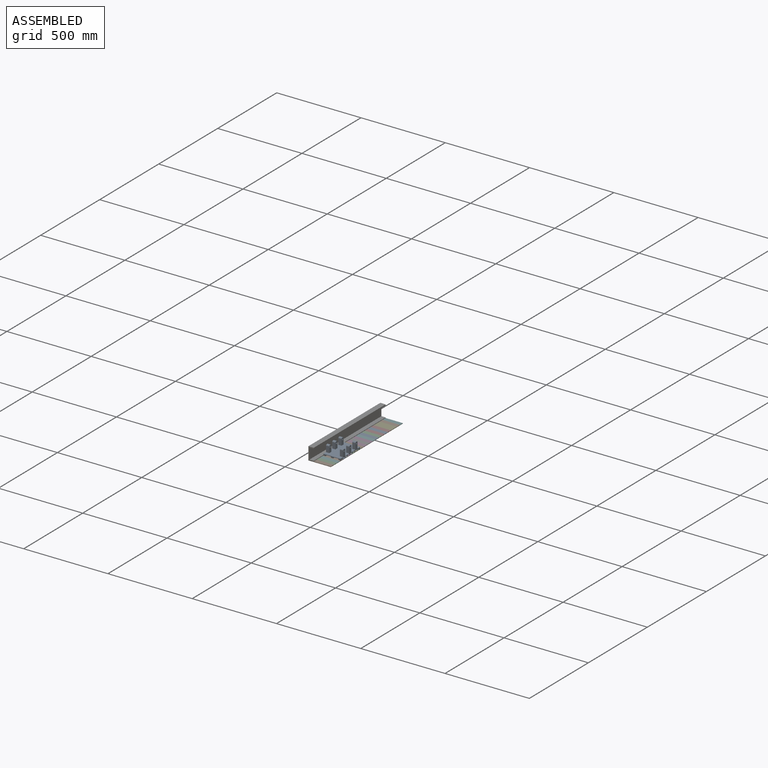
[diagram: assembled view]
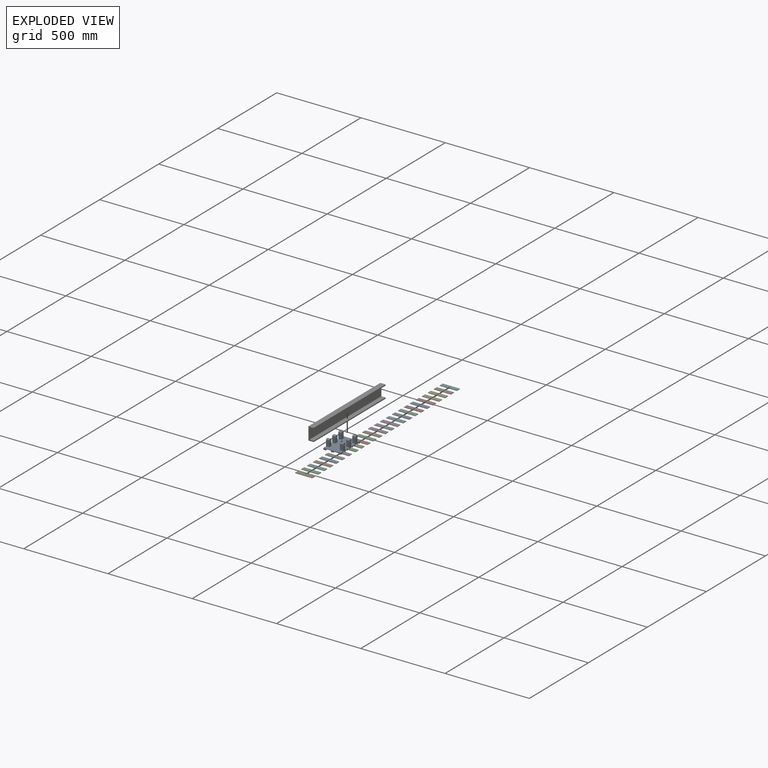
[diagram: exploded view]
GUIDED TOUR — MATED ASSEMBLY (Onshape document ed904bcbd6483d84cbd80351, AutoMate assembly ed904bcbd6483d84cbd80351_0afc6a0ae85f4b038a35337e_70d72d16065ceadc5e5b3c3e_default)

This assembly has 27 components, labeled P0..P26 below (a component is one placed occurrence of a part; the same part can appear more than once), held together by 26 mates. A mate is a constraint between two components; its type names the relative motion it leaves free:
  FASTENED — locks the two components together rigidly (no relative motion).
Axis/direction vectors are unit vectors and 'through' points are millimeter coordinates, both in the assembly's world frame.

MATES
  1. FASTENED "Fastened 9": P22 <-> P3, direction (0.000, 1.000, 0.000) through (145.36, -239.02, -169.31) mm
  2. FASTENED "Fastened 4": P21 <-> P11, direction (0.000, -1.000, 0.000) through (145.36, -35.82, -169.31) mm
  3. FASTENED "Fastened 3": P14 <-> P11, direction (0.000, 1.000, 0.000) through (145.36, -61.22, -169.31) mm
  4. FASTENED "Fastened 3": P9 <-> P2, direction (0.000, 1.000, 0.000) through (145.36, -366.02, -169.31) mm
  5. FASTENED "Fastened 5": P15 <-> P12, direction (0.000, 1.000, 0.000) through (145.36, -162.82, -169.31) mm
  6. FASTENED "Fastened 8": P19 <-> P17, direction (0.000, -1.000, 0.000) through (145.36, -112.02, -169.31) mm
  7. FASTENED "Fastened 8": P5 <-> P1, direction (0.000, -1.000, 0.000) through (145.36, 192.78, -169.31) mm
  8. FASTENED "Fastened 10": P6 <-> P9, direction (0.000, 0.000, 1.000) through (94.56, -391.42, -170.90) mm
  9. FASTENED "Fastened 7": P1 <-> P20, direction (0.000, -1.000, 0.000) through (145.36, 167.38, -169.31) mm
  10. FASTENED "Fastened 7": P10 <-> P0, direction (0.000, -1.000, 0.000) through (145.36, 14.98, -169.31) mm
  11. FASTENED "Fastened 2": P16 <-> P3, direction (0.000, 0.000, -1.000) through (145.36, -226.32, -167.72) mm
  12. FASTENED "Fastened 7": P8 <-> P25, direction (0.000, -1.000, 0.000) through (145.36, -289.82, -169.31) mm
  13. FASTENED "Fastened 6": P25 <-> P13, direction (0.000, -1.000, 0.000) through (145.36, -315.22, -169.31) mm
  14. FASTENED "Fastened 7": P17 <-> P18, direction (0.000, -1.000, 0.000) through (145.36, -137.42, -169.31) mm
  15. FASTENED "Fastened 4": P12 <-> P26, direction (0.000, -1.000, 0.000) through (145.36, -188.22, -169.31) mm
  16. FASTENED "Fastened 8": P23 <-> P10, direction (0.000, -1.000, 0.000) through (145.36, 40.38, -169.31) mm
  17. FASTENED "Fastened 6": P20 <-> P4, direction (0.000, -1.000, 0.000) through (145.36, 141.98, -169.31) mm
  18. FASTENED "Fastened 6": P0 <-> P21, direction (0.000, -1.000, 0.000) through (145.36, -10.42, -169.31) mm
  19. FASTENED "Fastened 4": P4 <-> P7, direction (0.000, -1.000, 0.000) through (145.36, 116.58, -169.31) mm
  20. FASTENED "Fastened 6": P18 <-> P12, direction (0.000, -1.000, 0.000) through (145.36, -162.82, -169.31) mm
  21. FASTENED "Fastened 3": P3 <-> P26, direction (0.000, 1.000, 0.000) through (145.36, -213.62, -169.31) mm
  22. FASTENED "Fastened 4": P13 <-> P2, direction (0.000, -1.000, 0.000) through (145.36, -340.62, -169.31) mm
  23. FASTENED "Fastened 9": P23 <-> P24, direction (0.000, 1.000, 0.000) through (145.36, 65.78, -169.31) mm
  24. FASTENED "Fastened 1": P14 <-> P19, direction (0.000, -1.000, 0.000) through (145.36, -86.62, -169.31) mm
  25. FASTENED "Fastened 8": P22 <-> P8, direction (0.000, -1.000, 0.000) through (145.36, -264.42, -169.31) mm
  26. FASTENED "Fastened 3": P24 <-> P7, direction (0.000, 1.000, 0.000) through (145.36, 91.18, -169.31) mm

ASSEMBLY ORDER
  1. P15 — the base component [order verified]
  2. P12 [order verified]
  3. P18 [order verified]
  4. P26 [order verified]
  5. P17 [order verified]
  6. P3 [order verified]
  7. P19 [order verified]
  8. P22 [order verified]
  9. P16 [order verified]
  10. P8 [order verified]
  11. P14 [order verified]
  12. P11 [order verified]
  13. P25 [order verified]
  14. P21 [order verified]
  15. P13 [order verified]
  16. P2 [order verified]
  17. P0 [order verified]
  18. P9 [order verified]
  19. P10 [order verified]
  20. P23 [order verified]
  21. P24 [order verified]
  22. P7 [order verified]
  23. P4 [order verified]
  24. P20 [order verified]
  25. P1 [order verified]
  26. P5 [order verified]
  27. P6 [order verified]
(P12 verified with a relaxed clearance tolerance: the source model stores slight part interference there.)
Order-tag legend:
  [order verified] — this step's position reverses a verified removal order: the component was checked to insert without passing through the ones already placed.

Of the 27 components, 1 carries the full construction recipe — the FeatureScript program that regenerates the part's solid from scratch; the rest are supplied as boundary geometry only.
Because this assembly has more than 12 components, the tour below covers the 12 most significant ones individually (every recipe-attached component first, then the largest by part volume), in assembly order; the remaining 15 are summarized together in a grouped section at the end.
Each toured component is shown spotlighted twice — in the assembled view, then in the exploded view, where a leader line traces a displaced component back to its assembled socket (saturated green if recipe-attached, orange if geometry-only; every other component desaturated gray) — followed by its recipe or geometry summary and the mates that hold it.
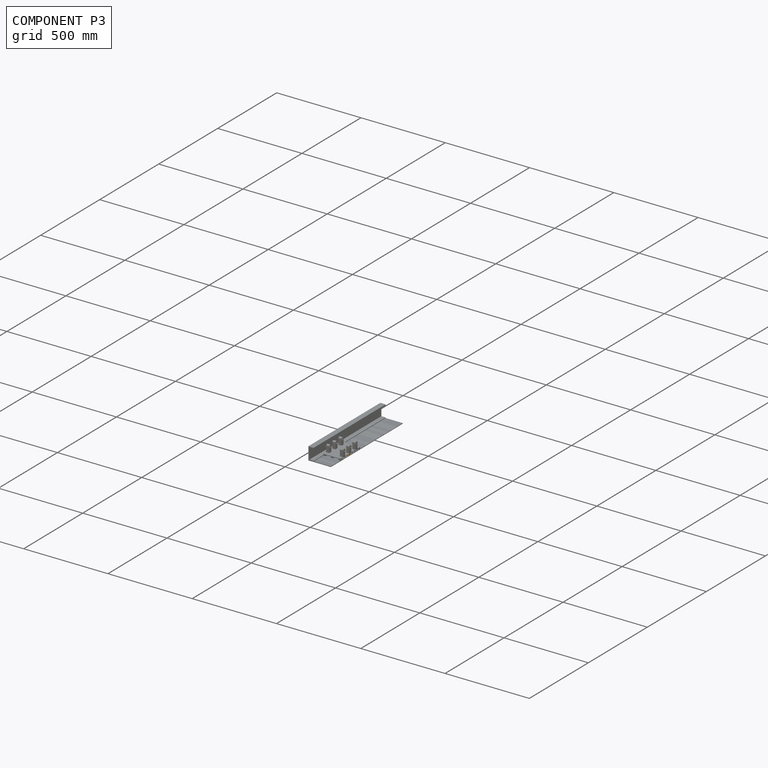
[diagram: component P3 — assembled]
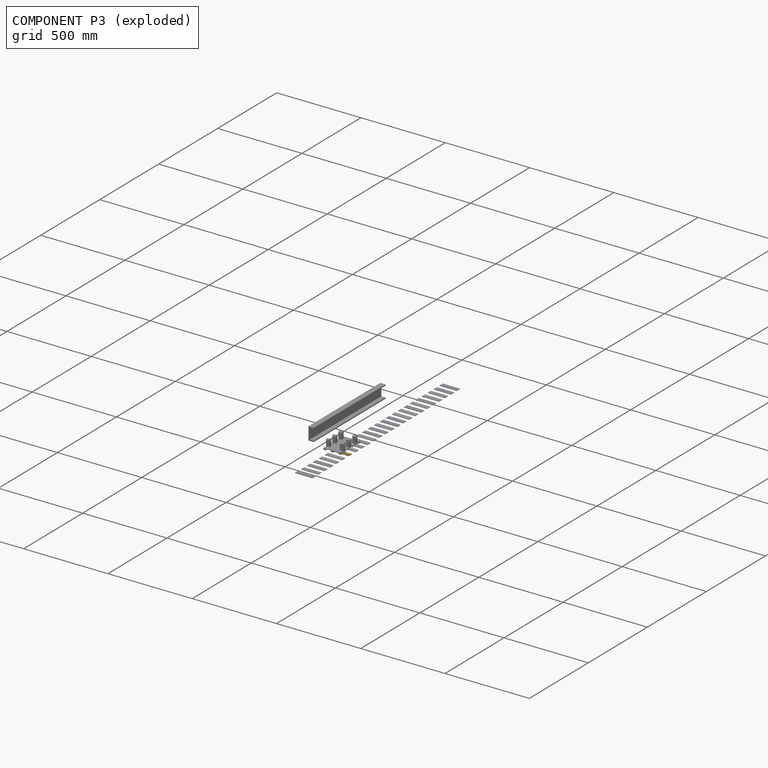
[diagram: component P3 — exploded]
COMPONENT P3 — geometry summary (no construction recipe available for this part):
  bounding box: 101.6 x 25.4 x 3.2 mm
  B-rep topology: 1 solid, 6 faces, 24 edges
  volume: 8194 mm^3 (100% of its bounding box)
  symmetry: 2-fold rotationally symmetric about the x axis; 2-fold rotationally symmetric about the y axis; 2-fold rotationally symmetric about the z axis; mirror-symmetric across its x mid-plane, y mid-plane, z mid-plane
Held by: FASTENED mate "Fastened 9" to P22; FASTENED mate "Fastened 2" to P16; FASTENED mate "Fastened 3" to P26.
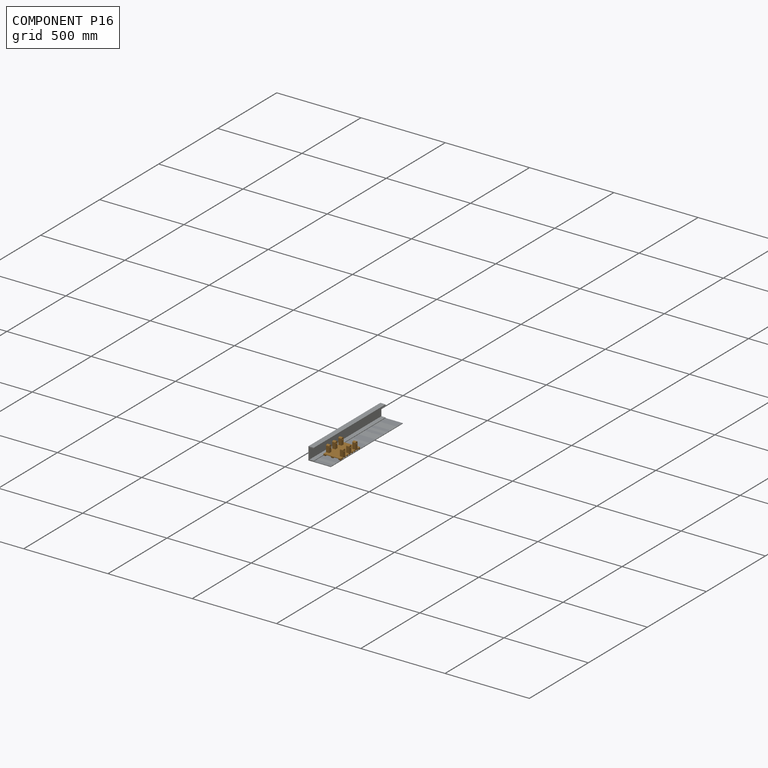
[diagram: component P16 — assembled]
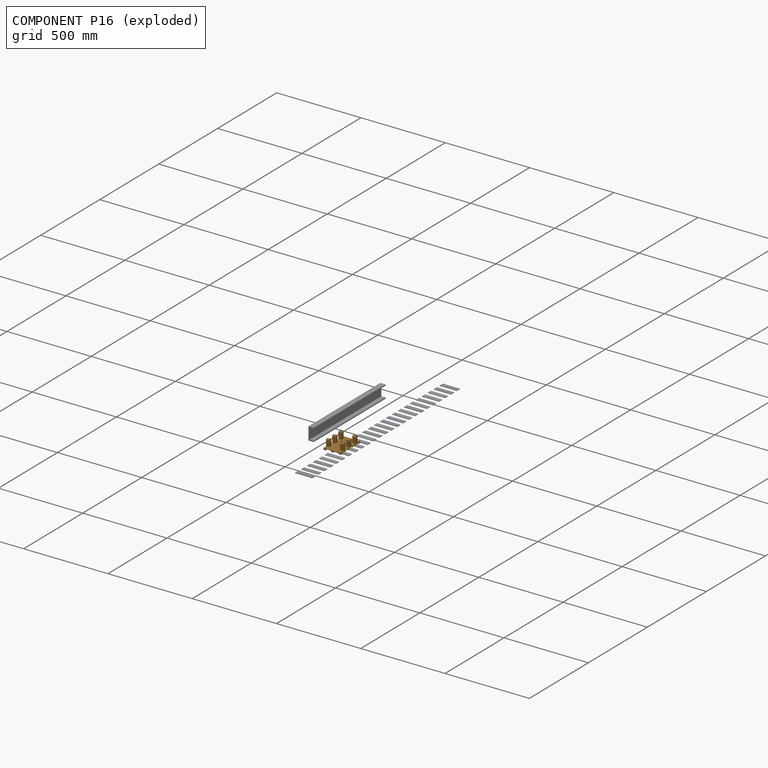
[diagram: component P16 — exploded]
COMPONENT P16 — geometry summary (no construction recipe available for this part):
  bounding box: 166.1 x 101.6 x 52.1 mm
  B-rep topology: 1 solid, 96 faces, 576 edges
  volume: 148462 mm^3 (17% of its bounding box)
  symmetry: 2-fold rotationally symmetric about the x axis; mirror-symmetric across its y mid-plane, z mid-plane
Held by: FASTENED mate "Fastened 2" to P3.
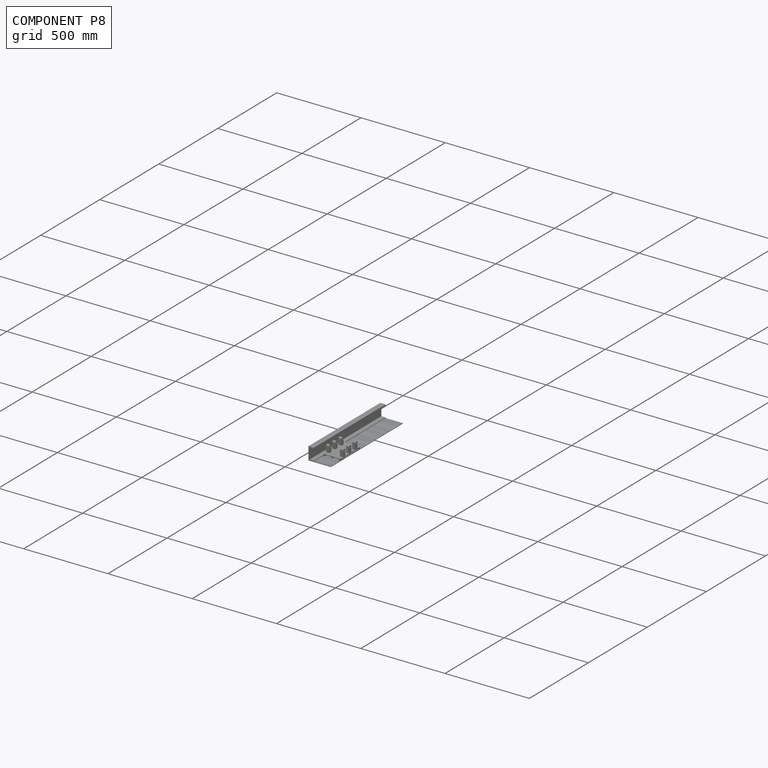
[diagram: component P8 — assembled]
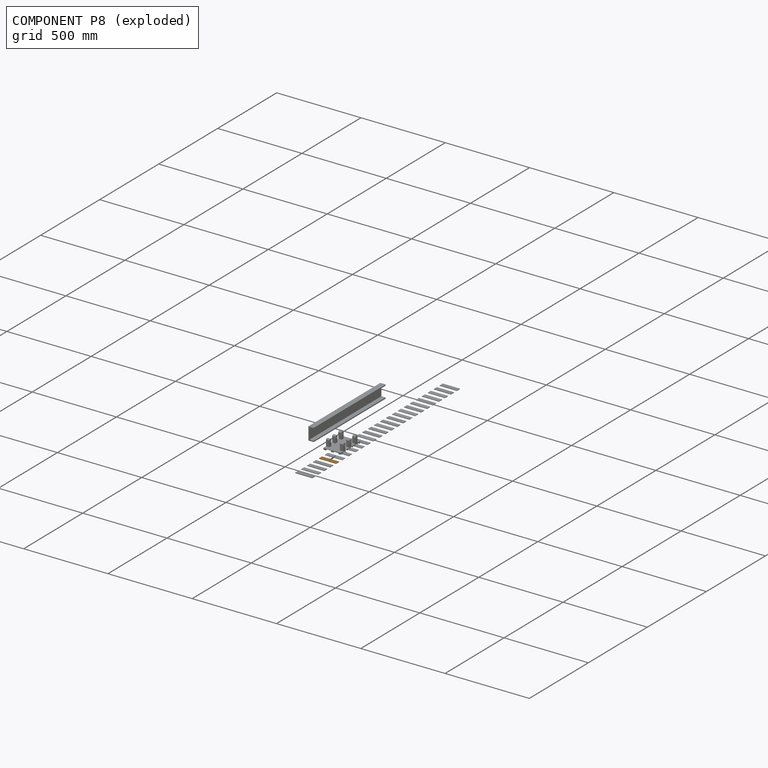
[diagram: component P8 — exploded]
COMPONENT P8 — geometry summary (no construction recipe available for this part):
  bounding box: 101.6 x 25.4 x 3.2 mm
  B-rep topology: 1 solid, 6 faces, 24 edges
  volume: 8194 mm^3 (100% of its bounding box)
  symmetry: 2-fold rotationally symmetric about the x axis; 2-fold rotationally symmetric about the y axis; 2-fold rotationally symmetric about the z axis; mirror-symmetric across its x mid-plane, y mid-plane, z mid-plane
Held by: FASTENED mate "Fastened 7" to P25; FASTENED mate "Fastened 8" to P22.
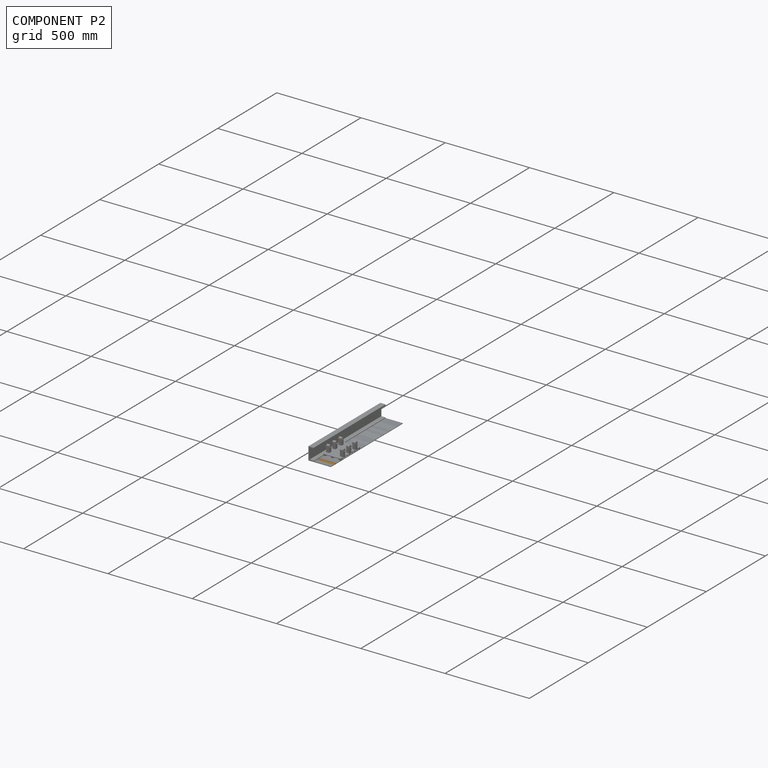
[diagram: component P2 — assembled]
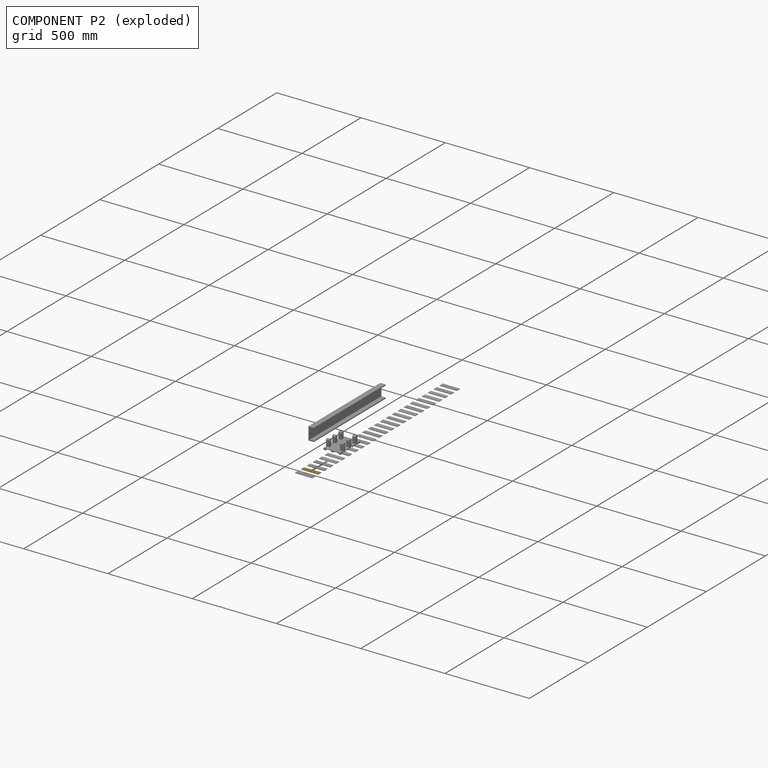
[diagram: component P2 — exploded]
COMPONENT P2 — geometry summary (no construction recipe available for this part):
  bounding box: 101.6 x 25.4 x 3.2 mm
  B-rep topology: 1 solid, 6 faces, 24 edges
  volume: 8194 mm^3 (100% of its bounding box)
  symmetry: 2-fold rotationally symmetric about the x axis; 2-fold rotationally symmetric about the y axis; 2-fold rotationally symmetric about the z axis; mirror-symmetric across its x mid-plane, y mid-plane, z mid-plane
Held by: FASTENED mate "Fastened 3" to P9; FASTENED mate "Fastened 4" to P13.
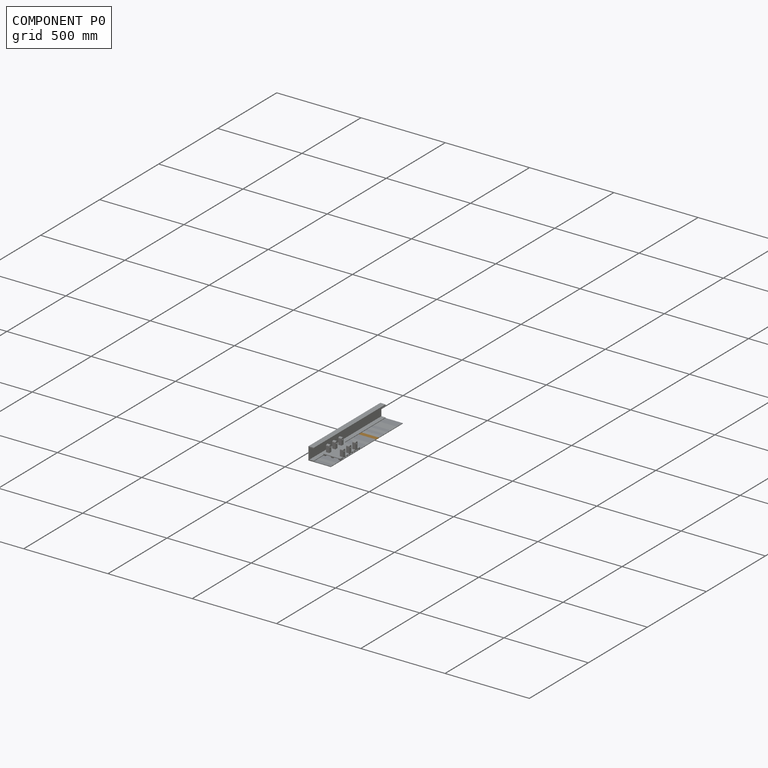
[diagram: component P0 — assembled]
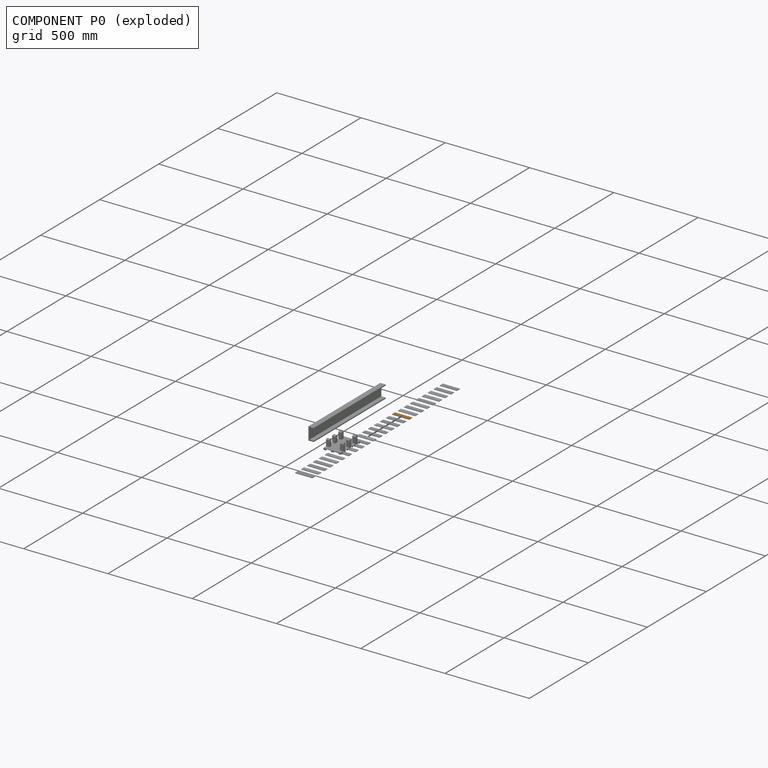
[diagram: component P0 — exploded]
COMPONENT P0 — geometry summary (no construction recipe available for this part):
  bounding box: 101.6 x 25.4 x 3.2 mm
  B-rep topology: 1 solid, 6 faces, 24 edges
  volume: 8194 mm^3 (100% of its bounding box)
  symmetry: 2-fold rotationally symmetric about the x axis; 2-fold rotationally symmetric about the y axis; 2-fold rotationally symmetric about the z axis; mirror-symmetric across its x mid-plane, y mid-plane, z mid-plane
Held by: FASTENED mate "Fastened 7" to P10; FASTENED mate "Fastened 6" to P21.
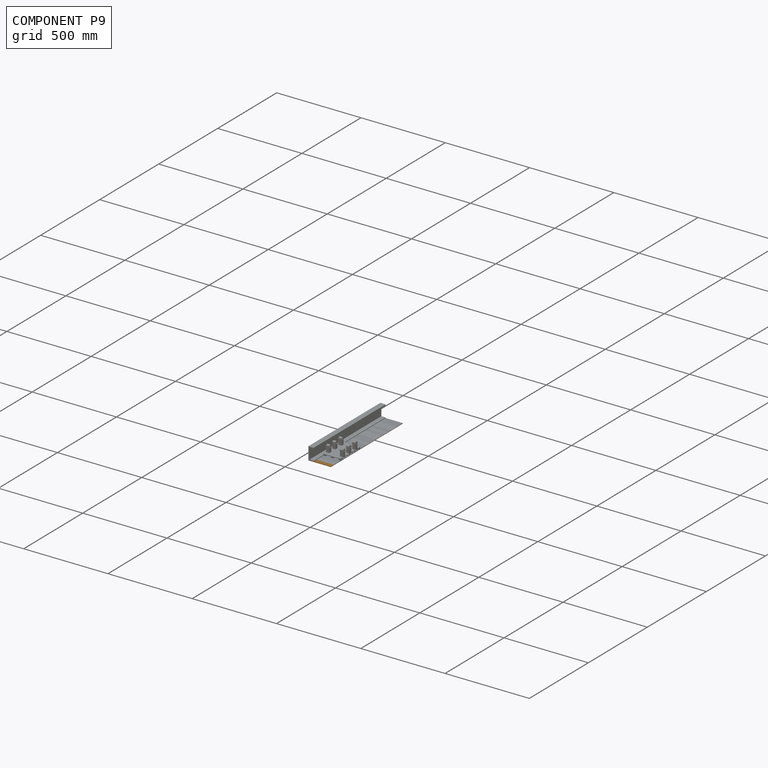
[diagram: component P9 — assembled]
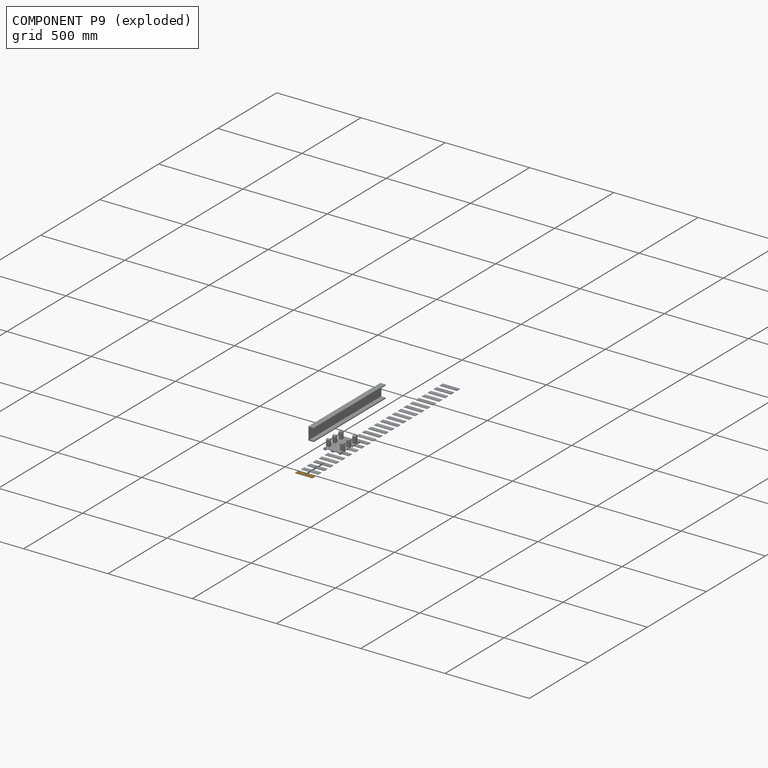
[diagram: component P9 — exploded]
COMPONENT P9 — geometry summary (no construction recipe available for this part):
  bounding box: 101.6 x 25.4 x 3.2 mm
  B-rep topology: 1 solid, 6 faces, 24 edges
  volume: 8194 mm^3 (100% of its bounding box)
  symmetry: 2-fold rotationally symmetric about the x axis; 2-fold rotationally symmetric about the y axis; 2-fold rotationally symmetric about the z axis; mirror-symmetric across its x mid-plane, y mid-plane, z mid-plane
Held by: FASTENED mate "Fastened 3" to P2; FASTENED mate "Fastened 10" to P6.
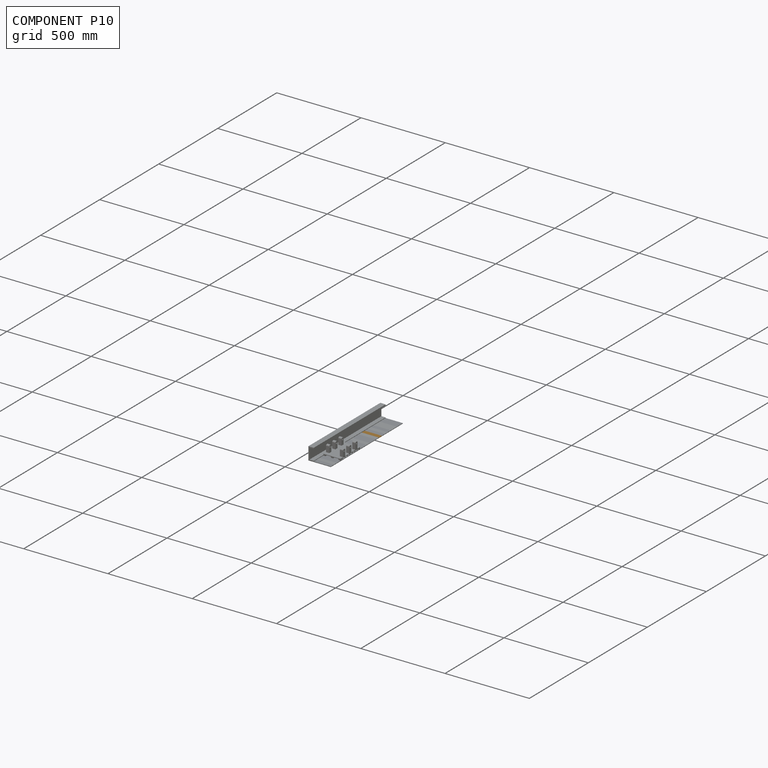
[diagram: component P10 — assembled]
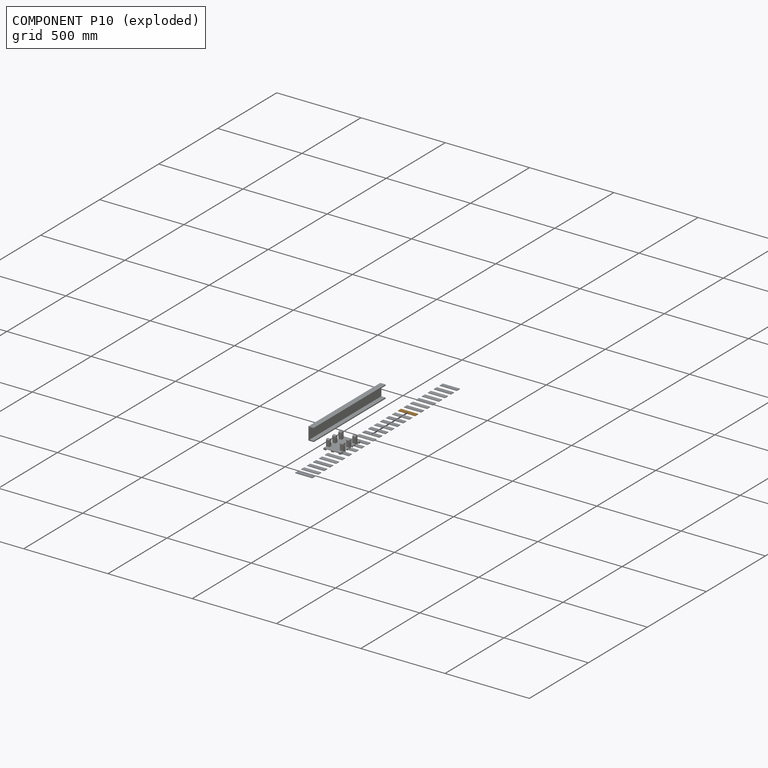
[diagram: component P10 — exploded]
COMPONENT P10 — geometry summary (no construction recipe available for this part):
  bounding box: 101.6 x 25.4 x 3.2 mm
  B-rep topology: 1 solid, 6 faces, 24 edges
  volume: 8194 mm^3 (100% of its bounding box)
  symmetry: 2-fold rotationally symmetric about the x axis; 2-fold rotationally symmetric about the y axis; 2-fold rotationally symmetric about the z axis; mirror-symmetric across its x mid-plane, y mid-plane, z mid-plane
Held by: FASTENED mate "Fastened 7" to P0; FASTENED mate "Fastened 8" to P23.
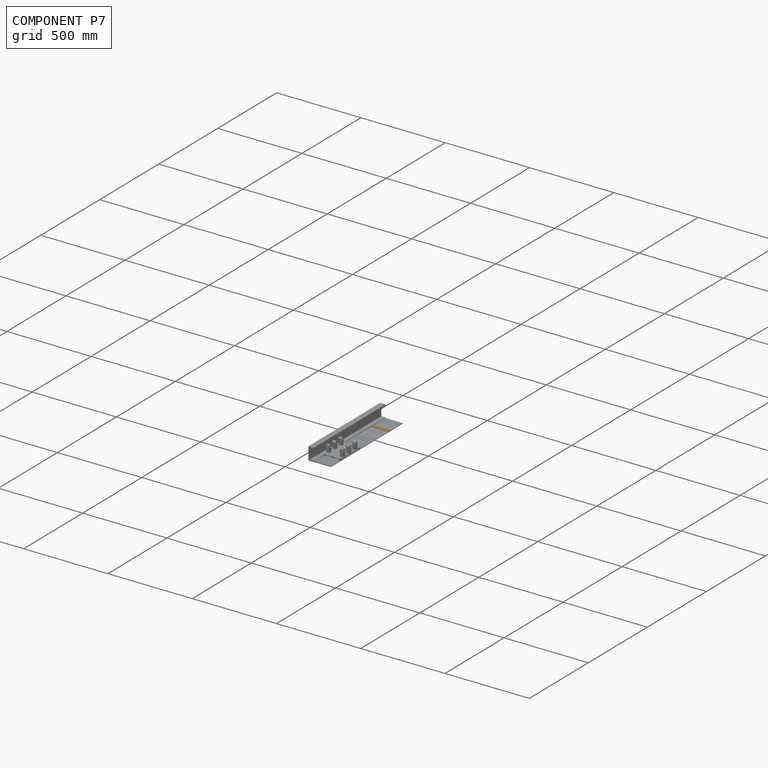
[diagram: component P7 — assembled]
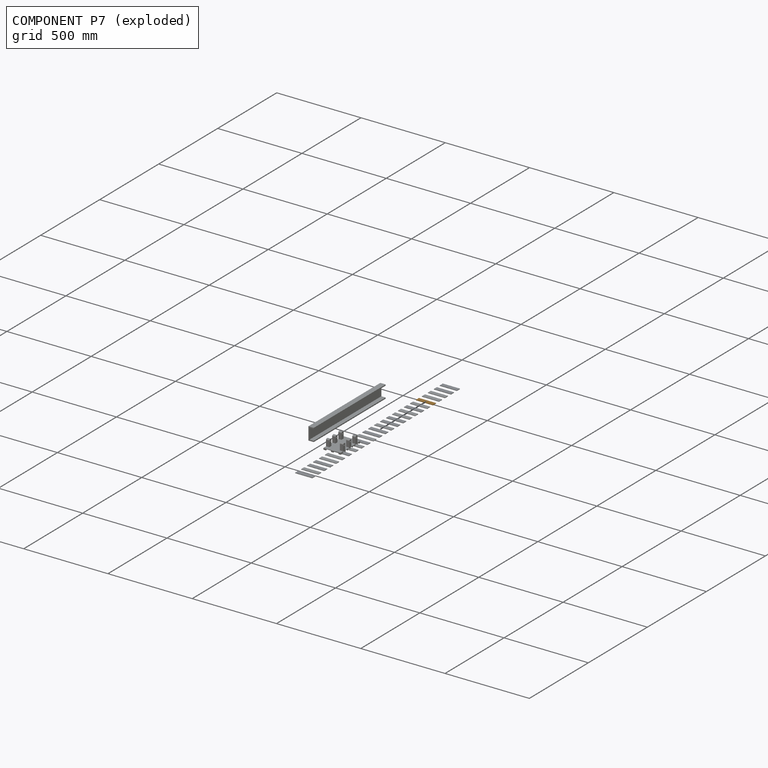
[diagram: component P7 — exploded]
COMPONENT P7 — geometry summary (no construction recipe available for this part):
  bounding box: 101.6 x 25.4 x 3.2 mm
  B-rep topology: 1 solid, 6 faces, 24 edges
  volume: 8194 mm^3 (100% of its bounding box)
  symmetry: 2-fold rotationally symmetric about the x axis; 2-fold rotationally symmetric about the y axis; 2-fold rotationally symmetric about the z axis; mirror-symmetric across its x mid-plane, y mid-plane, z mid-plane
Held by: FASTENED mate "Fastened 4" to P4; FASTENED mate "Fastened 3" to P24.
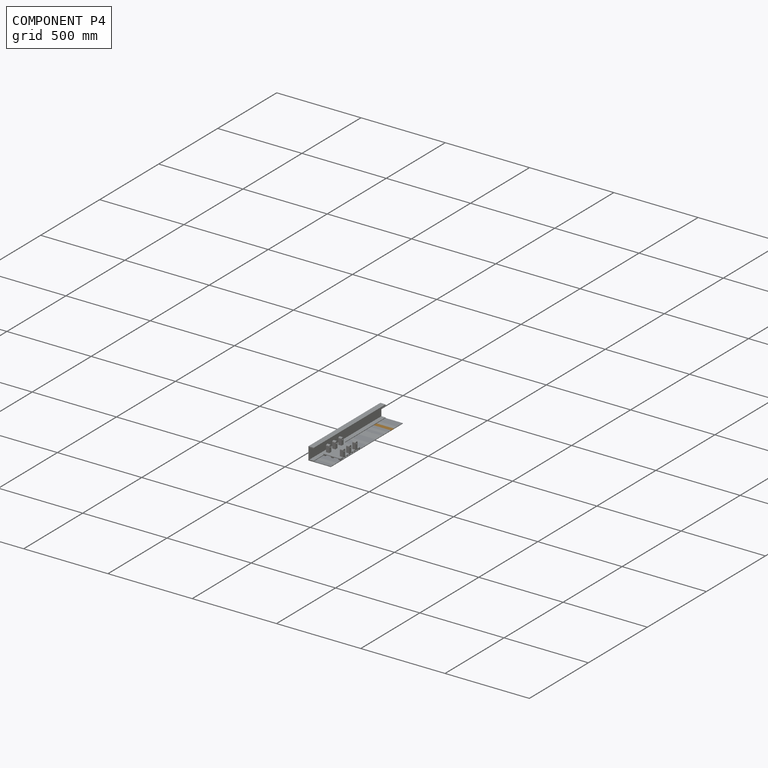
[diagram: component P4 — assembled]
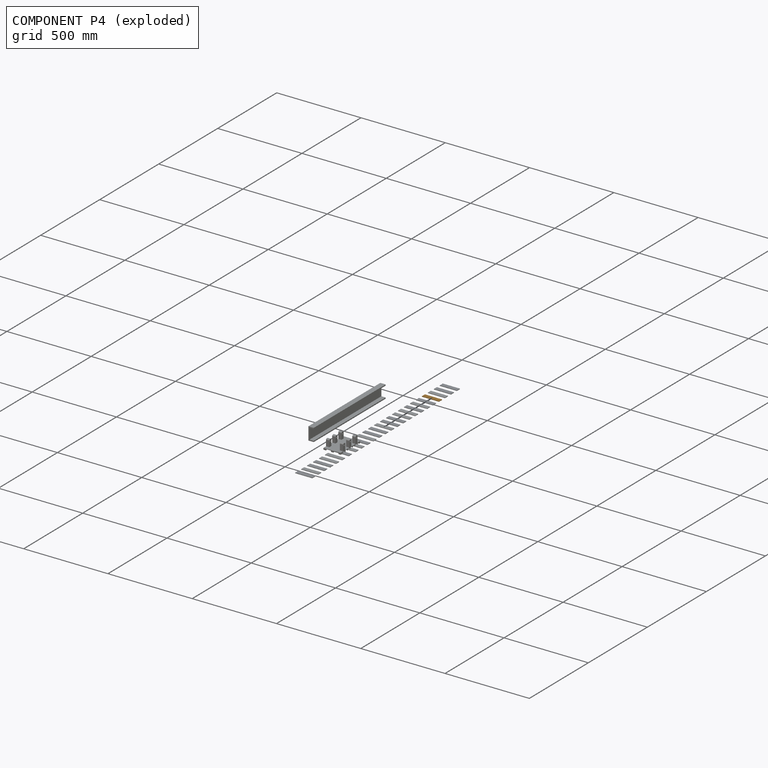
[diagram: component P4 — exploded]
COMPONENT P4 — geometry summary (no construction recipe available for this part):
  bounding box: 101.6 x 25.4 x 3.2 mm
  B-rep topology: 1 solid, 6 faces, 24 edges
  volume: 8194 mm^3 (100% of its bounding box)
  symmetry: 2-fold rotationally symmetric about the x axis; 2-fold rotationally symmetric about the y axis; 2-fold rotationally symmetric about the z axis; mirror-symmetric across its x mid-plane, y mid-plane, z mid-plane
Held by: FASTENED mate "Fastened 6" to P20; FASTENED mate "Fastened 4" to P7.
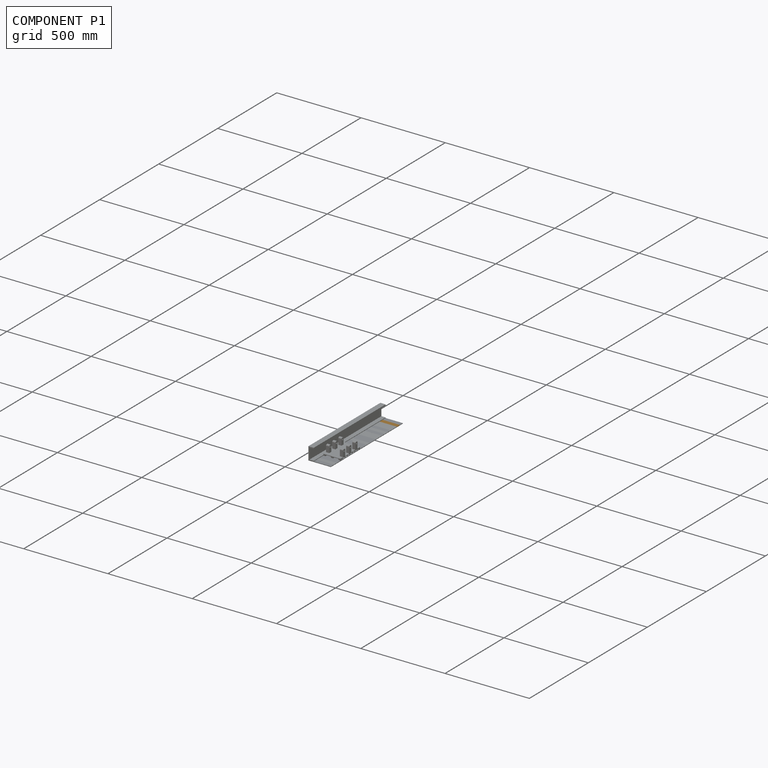
[diagram: component P1 — assembled]
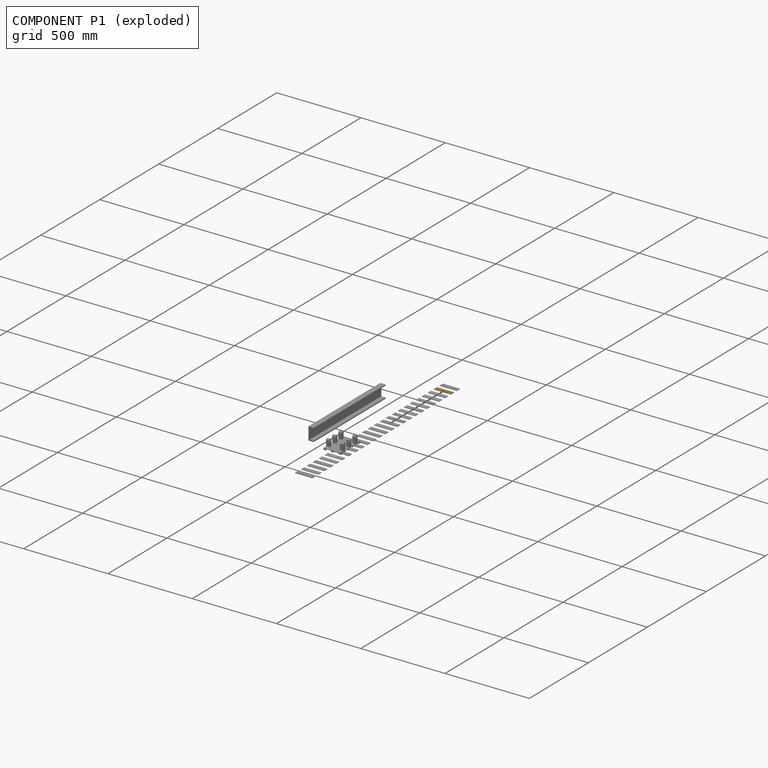
[diagram: component P1 — exploded]
COMPONENT P1 — geometry summary (no construction recipe available for this part):
  bounding box: 101.6 x 25.4 x 3.2 mm
  B-rep topology: 1 solid, 6 faces, 24 edges
  volume: 8194 mm^3 (100% of its bounding box)
  symmetry: 2-fold rotationally symmetric about the x axis; 2-fold rotationally symmetric about the y axis; 2-fold rotationally symmetric about the z axis; mirror-symmetric across its x mid-plane, y mid-plane, z mid-plane
Held by: FASTENED mate "Fastened 8" to P5; FASTENED mate "Fastened 7" to P20.
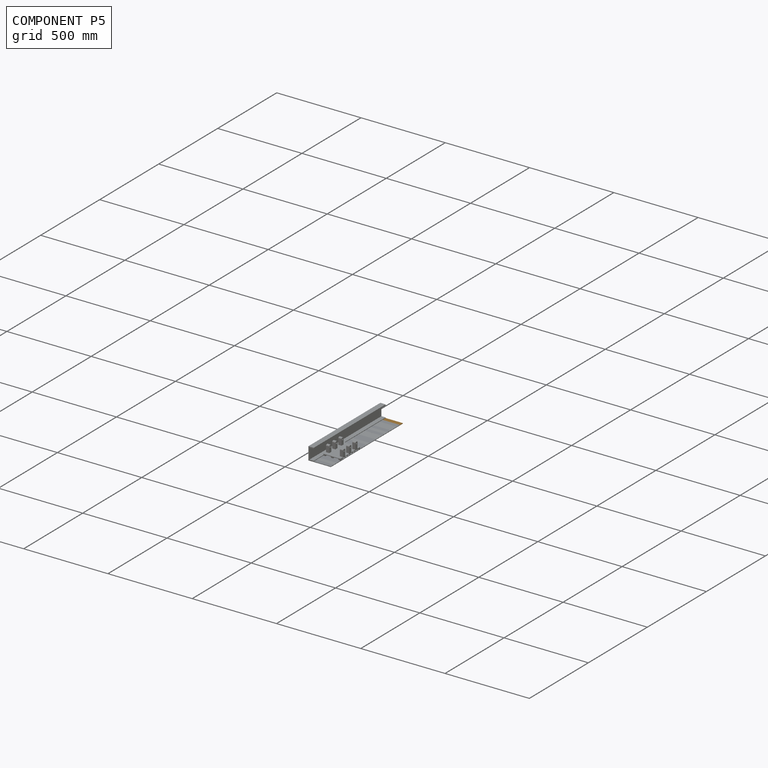
[diagram: component P5 — assembled]
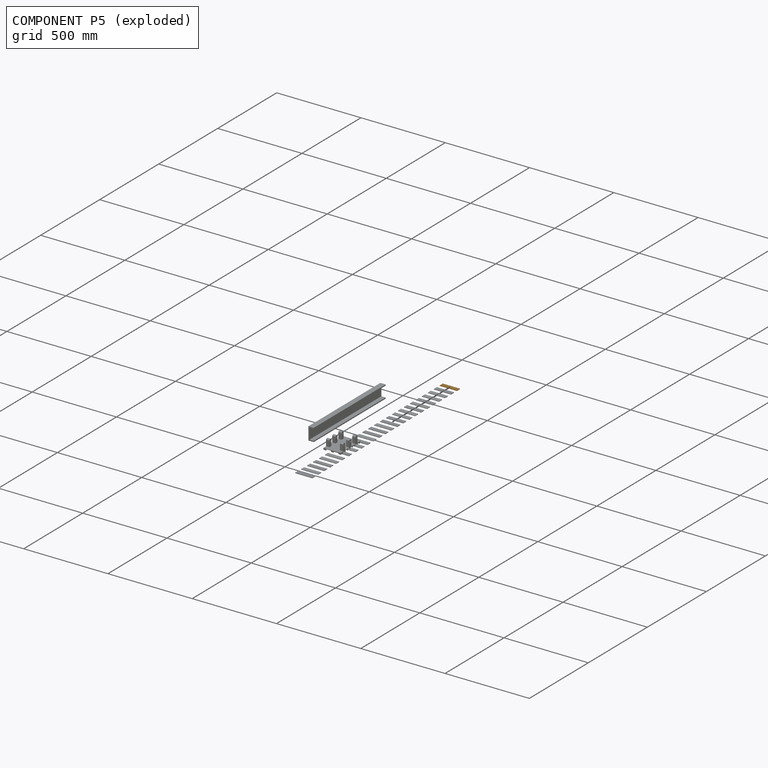
[diagram: component P5 — exploded]
COMPONENT P5 — geometry summary (no construction recipe available for this part):
  bounding box: 101.6 x 25.4 x 3.2 mm
  B-rep topology: 1 solid, 6 faces, 24 edges
  volume: 8194 mm^3 (100% of its bounding box)
  symmetry: 2-fold rotationally symmetric about the x axis; 2-fold rotationally symmetric about the y axis; 2-fold rotationally symmetric about the z axis; mirror-symmetric across its x mid-plane, y mid-plane, z mid-plane
Held by: FASTENED mate "Fastened 8" to P1.
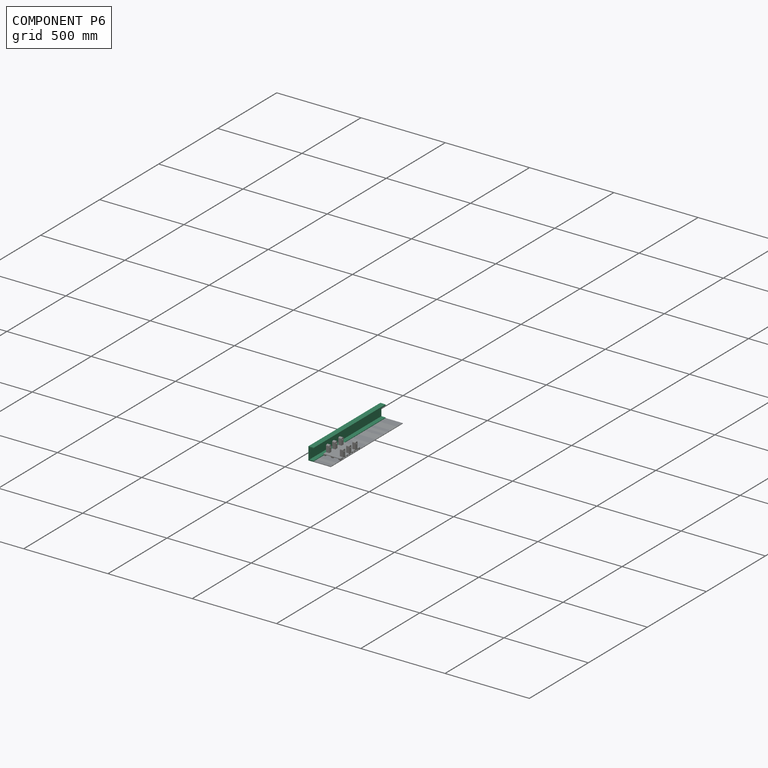
[diagram: component P6 — assembled]
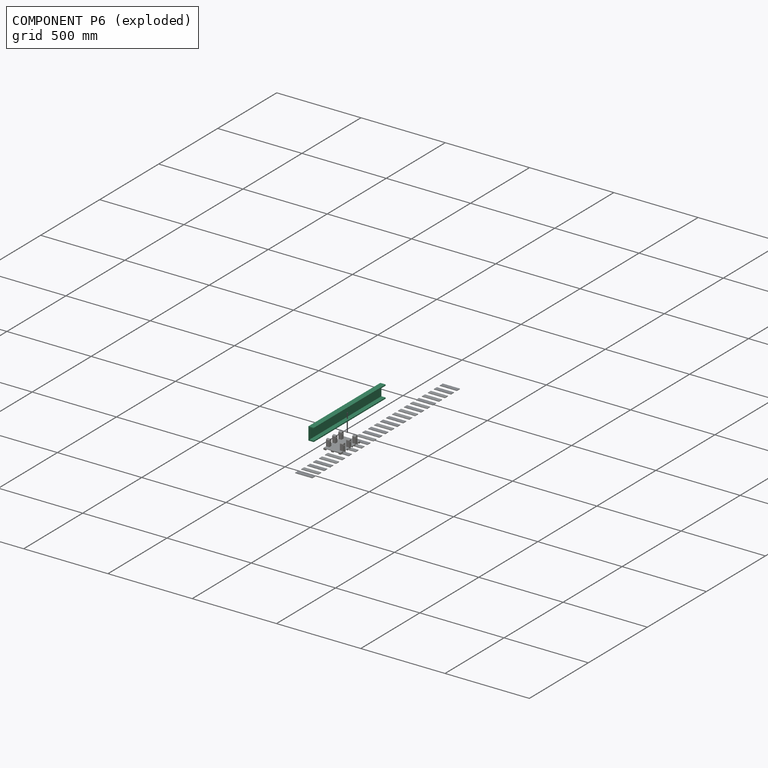
[diagram: component P6 — exploded]
COMPONENT P6 — recipe-attached (CADFS 00301839, mesh-verified: the recipe's output STEP matches this component's geometry to below the mesh-comparison resolution (tessellation chordal tolerance ~0.923 mm)).
Held by: FASTENED mate "Fastened 10" to P9.
Construction recipe (FeatureScript — the CAD program that rebuilds this solid; sketch coordinates are in the units given by the * unit suffixes, e.g. mm):

FeatureScript 1511;
import(path : "onshape/std/geometry.fs", version : "1511.0");
import(path : "onshape/std/common.fs", version : "1511.0");
const mm = millimeter;
const VERTEX = EntityType.VERTEX;
const EDGE = EntityType.EDGE;
const FACE = EntityType.FACE;
const BODY = EntityType.BODY;
function v(x, y){return vector(x, y);}
function OD(order){return orderDisambiguation(order);}
function OSD(set){return originalSetDisambiguation(set);}
function TD(topology){return topologyDisambiguation(topology);}
function TDD(query){return trueDependencyDisambiguation(query);}
function sQuery(a, b, c) {return sketchEntityQuery(a, b, c);}

annotation { "Feature Type Name" : "Feature", "Feature Type Description" : "" }
export const myFeature = defineFeature(function(context is Context, id is Id, definition is map)
    precondition{}
    {
        {
            var Q0;
            Q0=qCreatedBy(makeId("Front.planeOp"),FACE);
            var sketch = newSketch(context, id + "F0", { "sketchPlane" : qUnion([Q0])});
            skLineSegment(sketch, "E0", {"start": v(0, 0) * mm, "end": v(-25.4, 0) * mm});
            skLineSegment(sketch, "E1", {"start": v(-25.4, 0) * mm, "end": v(-25.4, 63.5) * mm});
            skLineSegment(sketch, "E2", {"start": v(-25.4, 63.5) * mm, "end": v(0, 63.5) * mm});
            skLineSegment(sketch, "E3", {"start": v(0, 63.5) * mm, "end": v(0, 69.85) * mm});
            skLineSegment(sketch, "E4", {"start": v(0, 69.85) * mm, "end": v(-31.75, 69.85) * mm});
            skLineSegment(sketch, "E5", {"start": v(-31.75, 69.85) * mm, "end": v(-31.75, -6.35) * mm});
            skLineSegment(sketch, "E6", {"start": v(-31.75, -6.35) * mm, "end": v(0, -6.35) * mm});
            skLineSegment(sketch, "E7", {"start": v(0, -6.35) * mm, "end": v(0, 0) * mm});
            skSolve(sketch);
        }
        {
            var Q0;
            Q0 = qSketchRegion(id + "F0", true);
            extrude(context, id + "F1", {"entities" : qUnion([Q0]), "endBound" : BoundingType.SYMMETRIC, "oppositeDirection" : true, "depth" : 609.6 * mm});
        }
    });
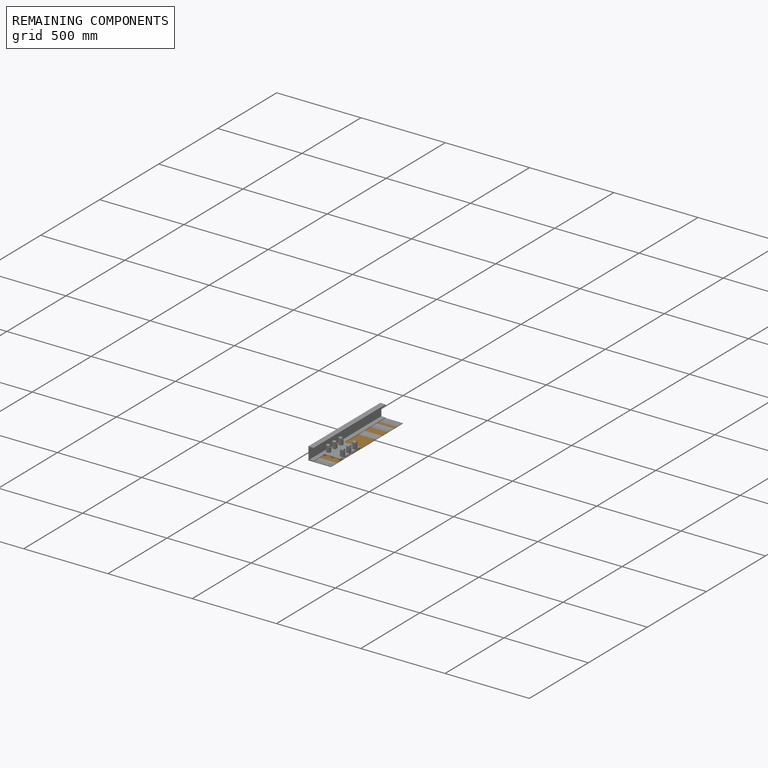
[diagram: remaining components — assembled]
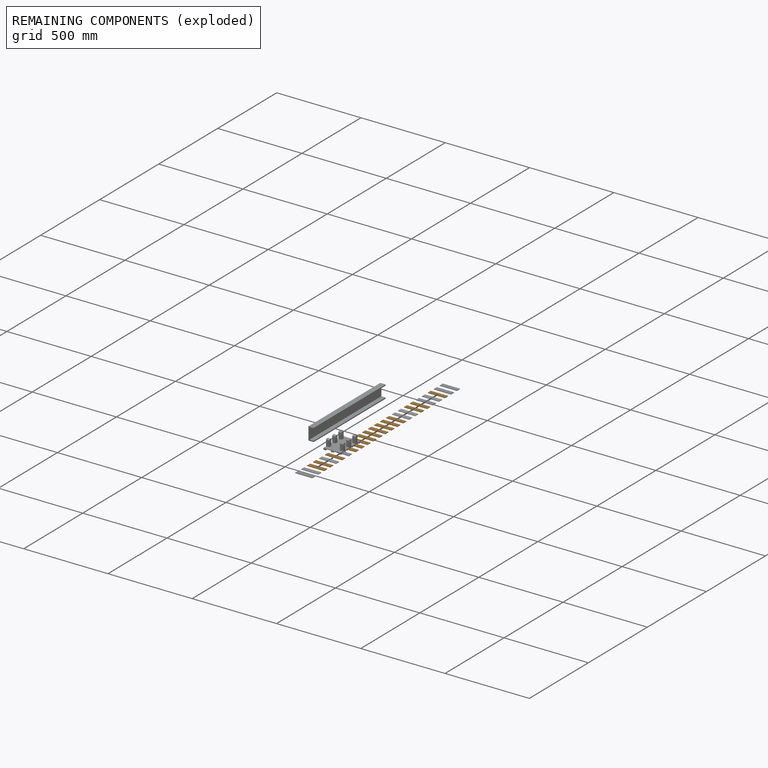
[diagram: remaining components — exploded]
REMAINING COMPONENTS (grouped) — the 15 components below fall outside the per-component tour by the significance rule stated above; both spotlight views highlight the whole group.
  P15: bounding box 101.6 x 25.4 x 3.2 mm, volume 8194 mm^3. Held by: FASTENED mate "Fastened 5" to P12.
  P12: bounding box 101.6 x 25.4 x 3.2 mm, volume 8194 mm^3. Held by: FASTENED mate "Fastened 5" to P15; FASTENED mate "Fastened 4" to P26; FASTENED mate "Fastened 6" to P18.
  P18: bounding box 101.6 x 25.4 x 3.2 mm, volume 8194 mm^3. Held by: FASTENED mate "Fastened 7" to P17; FASTENED mate "Fastened 6" to P12.
  P26: bounding box 101.6 x 25.4 x 3.2 mm, volume 8194 mm^3. Held by: FASTENED mate "Fastened 4" to P12; FASTENED mate "Fastened 3" to P3.
  P17: bounding box 101.6 x 25.4 x 3.2 mm, volume 8194 mm^3. Held by: FASTENED mate "Fastened 8" to P19; FASTENED mate "Fastened 7" to P18.
  P19: bounding box 101.6 x 25.4 x 3.2 mm, volume 8194 mm^3. Held by: FASTENED mate "Fastened 8" to P17; FASTENED mate "Fastened 1" to P14.
  P22: bounding box 101.6 x 25.4 x 3.2 mm, volume 8194 mm^3. Held by: FASTENED mate "Fastened 9" to P3; FASTENED mate "Fastened 8" to P8.
  P14: bounding box 101.6 x 25.4 x 3.2 mm, volume 8194 mm^3. Held by: FASTENED mate "Fastened 3" to P11; FASTENED mate "Fastened 1" to P19.
  P11: bounding box 101.6 x 25.4 x 3.2 mm, volume 8194 mm^3. Held by: FASTENED mate "Fastened 4" to P21; FASTENED mate "Fastened 3" to P14.
  P25: bounding box 101.6 x 25.4 x 3.2 mm, volume 8194 mm^3. Held by: FASTENED mate "Fastened 7" to P8; FASTENED mate "Fastened 6" to P13.
  P21: bounding box 101.6 x 25.4 x 3.2 mm, volume 8194 mm^3. Held by: FASTENED mate "Fastened 4" to P11; FASTENED mate "Fastened 6" to P0.
  P13: bounding box 101.6 x 25.4 x 3.2 mm, volume 8194 mm^3. Held by: FASTENED mate "Fastened 6" to P25; FASTENED mate "Fastened 4" to P2.
  P23: bounding box 101.6 x 25.4 x 3.2 mm, volume 8194 mm^3. Held by: FASTENED mate "Fastened 8" to P10; FASTENED mate "Fastened 9" to P24.
  P24: bounding box 101.6 x 25.4 x 3.2 mm, volume 8194 mm^3. Held by: FASTENED mate "Fastened 9" to P23; FASTENED mate "Fastened 3" to P7.
  P20: bounding box 101.6 x 25.4 x 3.2 mm, volume 8194 mm^3. Held by: FASTENED mate "Fastened 7" to P1; FASTENED mate "Fastened 6" to P4.
PROVENANCE & LICENSES
Assembly (occurrences, transforms, mates, per-part STEP geometry): AutoMate dataset, Zenodo record 7776208, CC0.
Construction recipes: CADFS (HuggingFace VladPyatov/CADFS, CC-BY-4.0, layered over the ABC dataset), FeatureScript reconstruction programs keyed by ABC model id.
Join: ABC meta listings map ABC model id -> Onshape documentId; within a shared document, parts are matched by geometric signature (bounding-box dims + volume at 0.1% relative tolerance, exact B-rep face/solid counts).
Verification: 1 of this assembly's 27 components carries a recipe attachment, and every attachment is mesh-verified: the CADFS STEP and the AutoMate member STEP were compared as meshes in their shared local frame (symmetric sampled-point-to-mesh distance); worst across the 1 attachment: below the mesh-comparison resolution (tessellation chordal tolerance ~0.923 mm) on a 615 mm part.
Renders: orthographic iso camera (az 35 / el 25); the floor grid conveys scale (grid pitch printed in each image; no ruler). In the exploded view each component is displaced by its stored offset vector: the offsets alone carry the explosion direction (mate normal/axis signs are not orientation cues and do not encode it), and separation distances are assigned per mate-chain, not proportionally to assembly-order depth.
